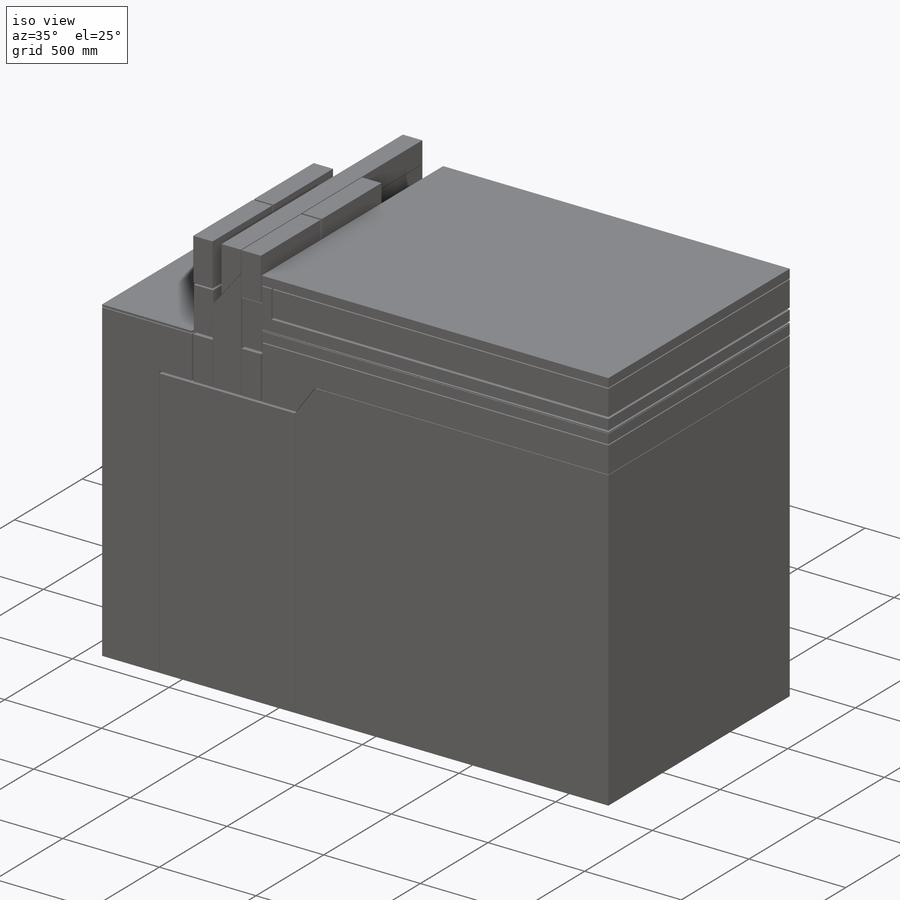
[diagram: iso view]
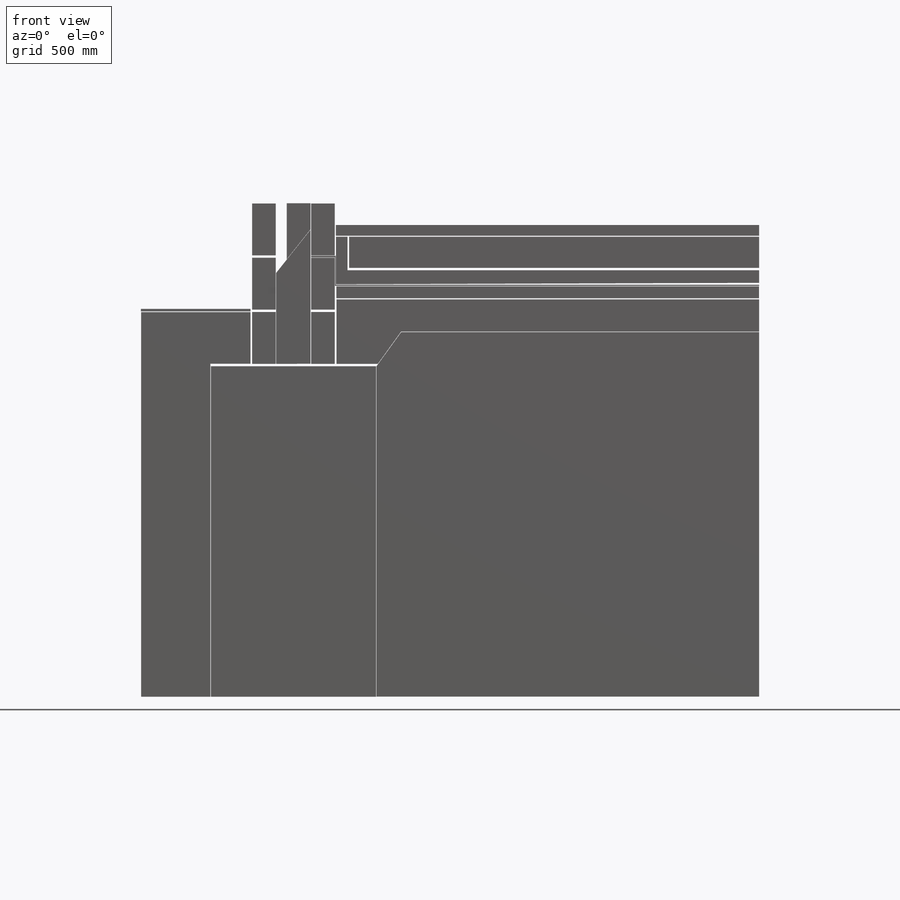
[diagram: front view]
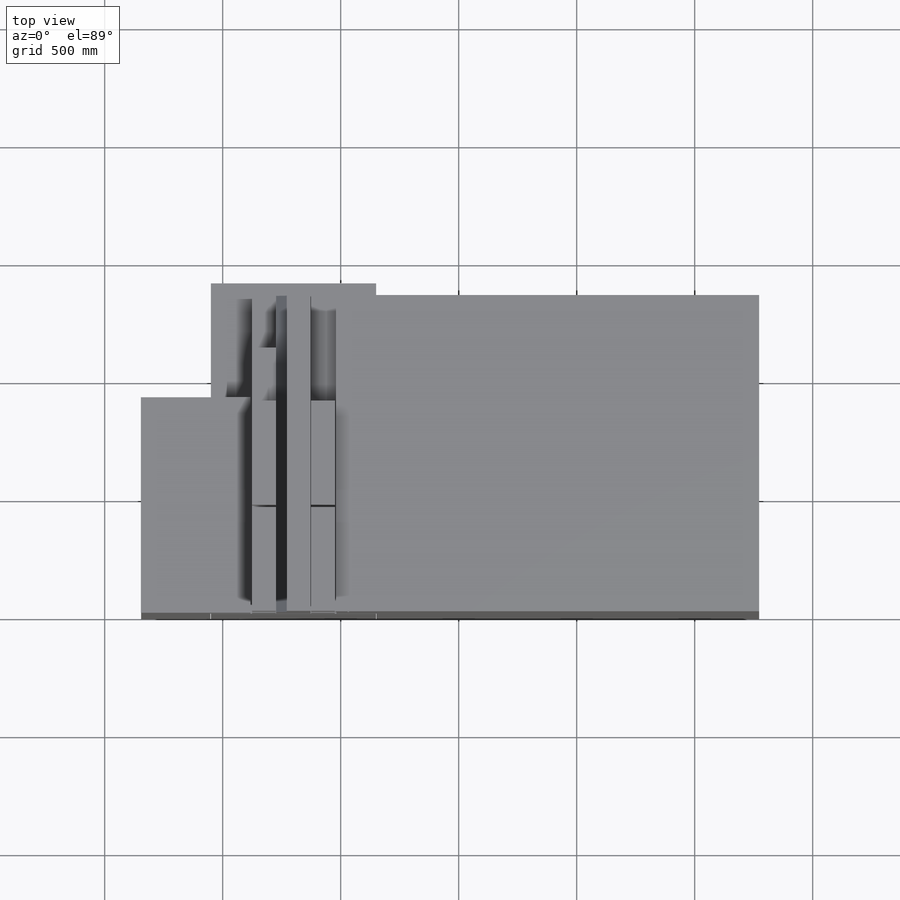
[diagram: top view]
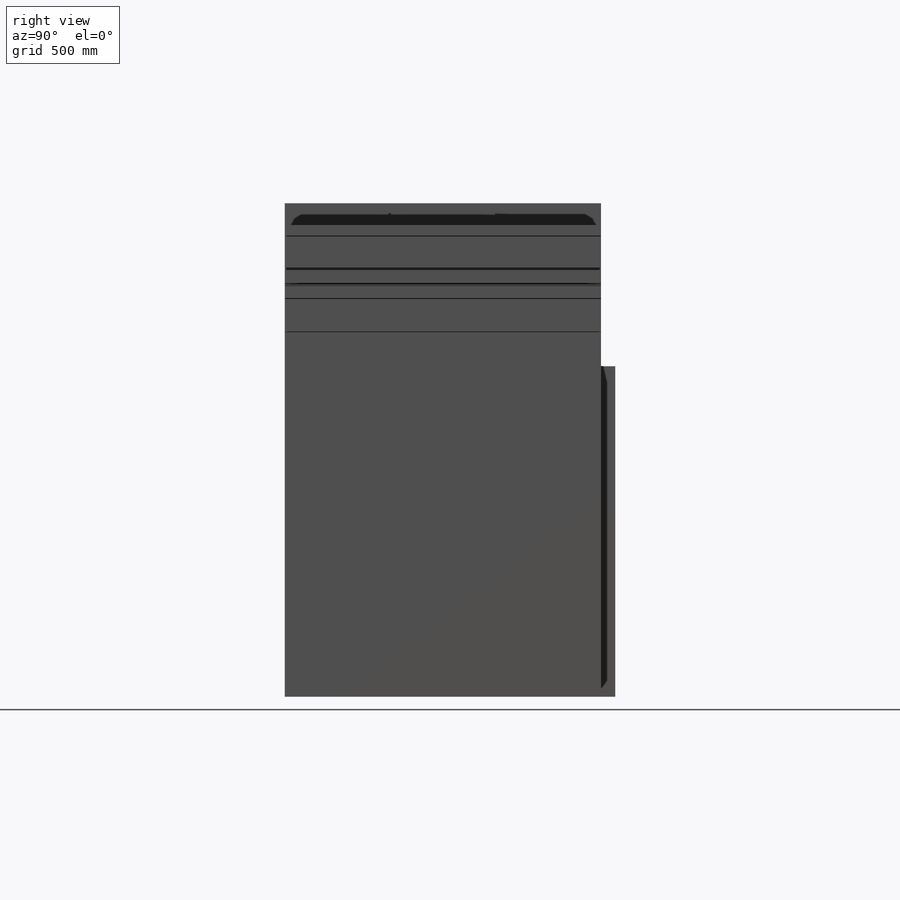
[diagram: right view]
SOLIDWORKS PART (.sldprt)
format: sldprt  version: not decoded by parser v0  size: 3,672,064 bytes
history: native  units: mm
features: sketch x19, extrude x19, material x1 (+11 scaffold rows collapsed)
feature tree (50):
  scaffold x11  (default folders/planes/origin — collapsed)
  material  "Material <not specified>"
  sketch  "Sketch3"  dims[D1=150.0mm D2=100.0mm D3=100.0mm D4=220.0mm D5=220.0mm D6=10.0mm D7=525.0mm]
  extrude  "Extrude2"  Depth=440mm
  sketch  "Sketch4"  dims[D1=440.0mm D2=440.0mm D3=10.0mm D4=10.0mm]
  extrude  "Extrude3"  Depth=100mm
  sketch  "Sketch5"
  extrude  "Extrude4"  Depth=100mm
  sketch  "Sketch6"  dims[D1=215.0mm D2=220.0mm D3=440.0mm D4=220.0mm D5=220.0mm D6=440.0mm D7=10.0mm D8=10.0mm D9=10.0mm D10=10.0mm D11=10.0mm]
  extrude  "Extrude5"  Depth=100mm
  sketch  "Sketch7"
  extrude  "Extrude6"  Depth=100mm
  sketch  "Sketch8"  dims[D1=440.0mm D2=220.0mm D3=220.0mm D4=440.0mm D5=10.0mm D6=10.0mm D7=10.0mm]
  extrude  "Extrude7"  Depth=100mm
  sketch  "Sketch9"
  extrude  "Extrude8"  Depth=100mm
  sketch  "Sketch10"
  extrude  "Extrude9"  [1 undecoded]
  sketch  "Sketch11"
  extrude  "Extrude11"  [1 undecoded]
  sketch  "Sketch12"  dims[D1=175.0mm]
  extrude  "Extrude12"  [1 undecoded]
  sketch  "Sketch24"  dims[D1=50.0mm]
  extrude  "Extrude22"  [1 undecoded]
  sketch  "Sketch25"
  extrude  "Extrude24"  [1 undecoded]
  sketch  "Sketch20"  dims[D1=700.0mm D2=1400.0mm D3=175.0mm D4=150.0mm]
  extrude  "Extrude18"  Depth=1400mm
  sketch  "Sketch21"
  extrude  "Extrude19"  Depth=913mm
  sketch  "Sketch22"
  extrude  "Extrude20"  [1 undecoded]
  sketch  "Sketch23"
  extrude  "Extrude21"  [1 undecoded]
  sketch  "Sketch27"
  extrude  "Extrude26"  [1 undecoded]
  sketch  "Sketch28"
  extrude  "Extrude27"  [1 undecoded]
  sketch  "Sketch29"
  extrude  "Extrude28"  [1 undecoded]
decode coverage: 16 of 38 modeling features carry decoded parameters
note: 10 parameter values undecoded
summary: no parameter record found for 10 features
note: suppression state not decoded; provenance and decode notes live in map.json
